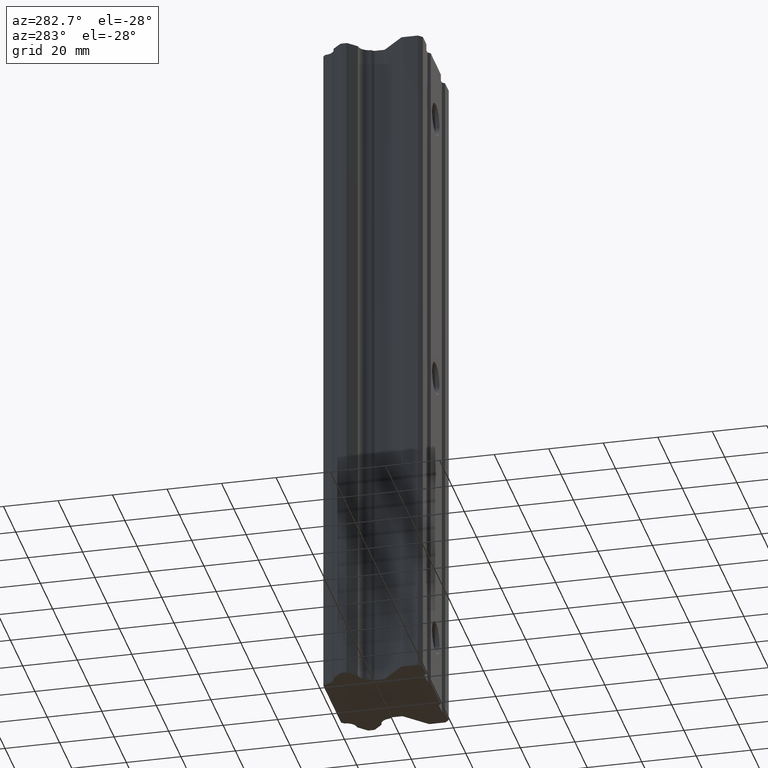
[diagram: clean part render]
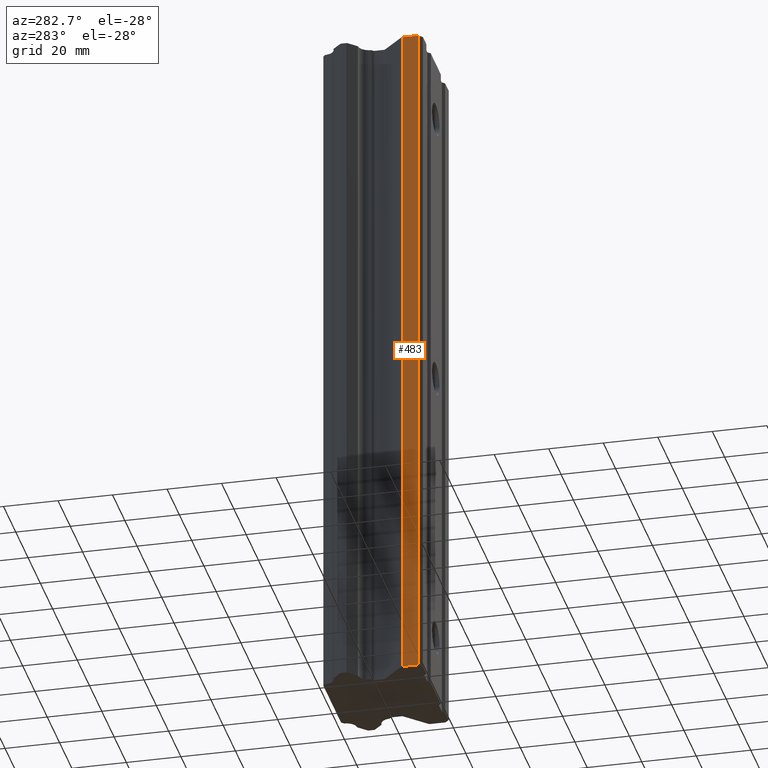
[diagram: same view with one face highlighted and labeled with its STEP entity id]
A machine part, auxiliary view. The second image highlights one B-rep face of the part: STEP entity #483.
In plain terms, the highlighted planar face has unit normal (-1, 0, 0).
Its self-contained STEP definition (entity closure, byte-faithful):
#63 = VERTEX_POINT ( 'NONE', #533 ) ;
#64 = EDGE_CURVE ( 'NONE', #68, #63, #532, .T. ) ;
#68 = VERTEX_POINT ( 'NONE', #523 ) ;
#317 = VERTEX_POINT ( 'NONE', #1272 ) ;
#318 = ORIENTED_EDGE ( 'NONE', *, *, #319, .F. ) ;
#319 = EDGE_CURVE ( 'NONE', #320, #317, #1271, .T. ) ;
#320 = VERTEX_POINT ( 'NONE', #1174 ) ;
#443 = EDGE_LOOP ( 'NONE', ( #484, #451, #318, #465 ) ) ;
#451 = ORIENTED_EDGE ( 'NONE', *, *, #452, .T. ) ;
#452 = EDGE_CURVE ( 'NONE', #63, #317, #1601, .T. ) ;
#465 = ORIENTED_EDGE ( 'NONE', *, *, #466, .F. ) ;
#466 = EDGE_CURVE ( 'NONE', #68, #320, #1511, .T. ) ;
#483 = ADVANCED_FACE ( 'NONE', ( #1461 ), #1460, .T. ) ;
#484 = ORIENTED_EDGE ( 'NONE', *, *, #64, .T. ) ;
#523 = CARTESIAN_POINT ( 'NONE',  ( -22.50000000000000000, -30.99672967487000000, 127.5000000000000000 ) ) ;
#529 = DIRECTION ( 'NONE',  ( 0.0000000000000000000, 0.0000000000000000000, -1.000000000000000000 ) ) ;
#530 = VECTOR ( 'NONE', #529, 1000.000000000000000 ) ;
#531 = CARTESIAN_POINT ( 'NONE',  ( -22.50000000000000000, -30.99672967487000000, -127.5000000000000000 ) ) ;
#532 = LINE ( 'NONE', #531, #530 ) ;
#533 = CARTESIAN_POINT ( 'NONE',  ( -22.50000000000000000, -30.99672967487000000, -127.5000000000000000 ) ) ;
#1174 = CARTESIAN_POINT ( 'NONE',  ( -22.50000000000002500, -36.49999999999997200, 127.5000000000000000 ) ) ;
#1268 = DIRECTION ( 'NONE',  ( 0.0000000000000000000, 0.0000000000000000000, -1.000000000000000000 ) ) ;
#1269 = VECTOR ( 'NONE', #1268, 1000.000000000000000 ) ;
#1270 = CARTESIAN_POINT ( 'NONE',  ( -22.50000000000000000, -36.50000000000000000, -127.5000000000000000 ) ) ;
#1271 = LINE ( 'NONE', #1270, #1269 ) ;
#1272 = CARTESIAN_POINT ( 'NONE',  ( -22.50000000000000000, -36.49999999999999300, -127.5000000000000000 ) ) ;
#1456 = DIRECTION ( 'NONE',  ( -8.198663895302000600E-014, -1.000000000000000000, 0.0000000000000000000 ) ) ;
#1457 = DIRECTION ( 'NONE',  ( -1.000000000000000000, 8.198663895302000600E-014, 0.0000000000000000000 ) ) ;
#1458 = CARTESIAN_POINT ( 'NONE',  ( -22.50000000000000000, -30.99672967487000000, -127.5000000000000000 ) ) ;
#1459 = AXIS2_PLACEMENT_3D ( 'NONE', #1458, #1457, #1456 ) ;
#1460 = PLANE ( 'NONE',  #1459 ) ;
#1461 = FACE_OUTER_BOUND ( 'NONE', #443, .T. ) ;
#1508 = DIRECTION ( 'NONE',  ( 0.0000000000000000000, -1.000000000000000000, 0.0000000000000000000 ) ) ;
#1509 = VECTOR ( 'NONE', #1508, 1000.000000000000000 ) ;
#1510 = CARTESIAN_POINT ( 'NONE',  ( -22.50000000000000000, 0.0000000000000000000, 127.5000000000000000 ) ) ;
#1511 = LINE ( 'NONE', #1510, #1509 ) ;
#1598 = DIRECTION ( 'NONE',  ( 0.0000000000000000000, -1.000000000000000000, 0.0000000000000000000 ) ) ;
#1599 = VECTOR ( 'NONE', #1598, 1000.000000000000000 ) ;
#1600 = CARTESIAN_POINT ( 'NONE',  ( -22.50000000000000000, 0.0000000000000000000, -127.5000000000000000 ) ) ;
#1601 = LINE ( 'NONE', #1600, #1599 ) ;